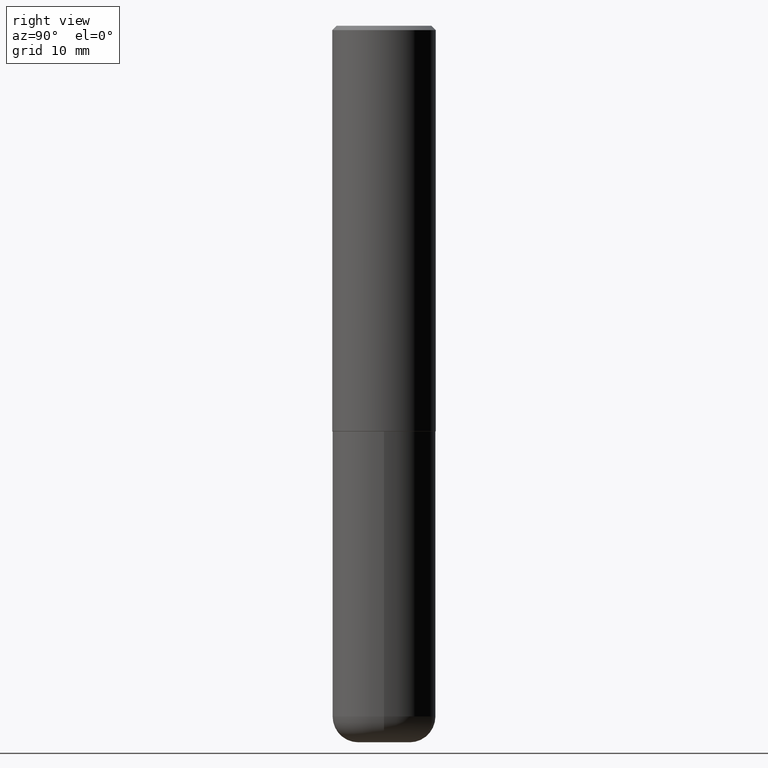
[diagram: clean part render]
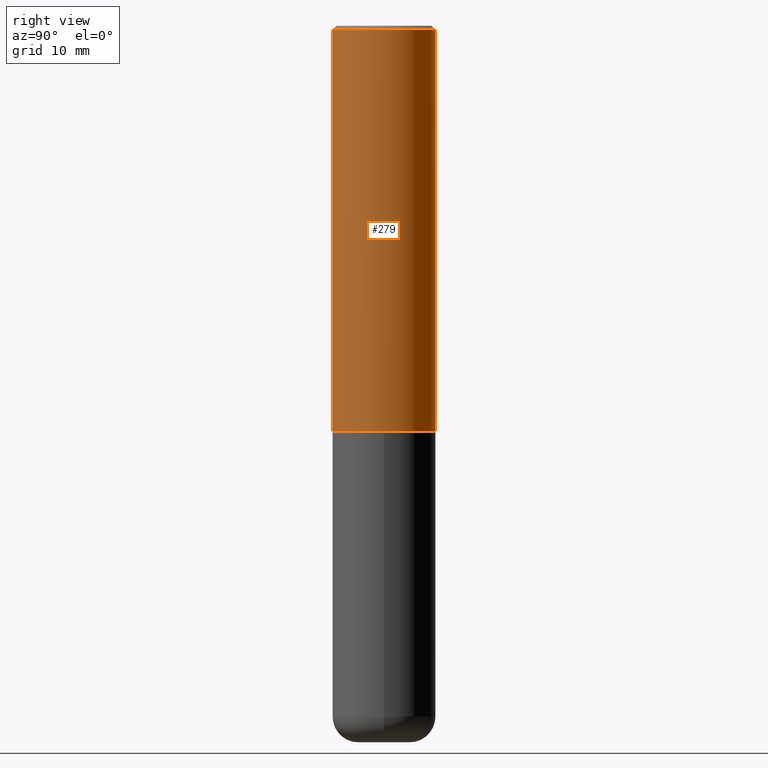
[diagram: same view with one face highlighted and labeled with its STEP entity id]
A machine part, right view. The second image highlights one B-rep face of the part: STEP entity #279.
In plain terms, the highlighted cylindrical surface (partial cylindrical patch) has radius 5.9995 mm, axis along (-0, 0, 1).
Its self-contained STEP definition (entity closure, byte-faithful):
#7 = DIRECTION ( 'NONE',  ( -2.445371925614294233E-29, 3.491620077334691546E-15, 1.000000000000000000 ) ) ;
#10 = EDGE_CURVE ( 'NONE', #61, #193, #118, .T. ) ;
#12 = DIRECTION ( 'NONE',  ( -2.445371925614294233E-29, 3.491620077334691546E-15, 1.000000000000000000 ) ) ;
#15 = DIRECTION ( 'NONE',  ( -2.445371925614294233E-29, 3.491620077334691546E-15, 1.000000000000000000 ) ) ;
#35 = DIRECTION ( 'NONE',  ( -6.982962677686265922E-15, -1.000000000000000000, 3.487819265831411744E-15 ) ) ;
#41 = CARTESIAN_POINT ( 'NONE',  ( 0.000000000000000000, 0.000000000000000000, 0.000000000000000000 ) ) ;
#61 = VERTEX_POINT ( 'NONE', #84 ) ;
#73 = CYLINDRICAL_SURFACE ( 'NONE', #303, 0.2362000000000001043 ) ;
#77 = DIRECTION ( 'NONE',  ( -2.445371925614294233E-29, 3.491620077334691546E-15, 1.000000000000000000 ) ) ;
#84 = CARTESIAN_POINT ( 'NONE',  ( -1.620449627073635079E-15, -0.2362000000000000766, -0.01999999999999922673 ) ) ;
#86 = LINE ( 'NONE', #206, #218 ) ;
#96 = EDGE_LOOP ( 'NONE', ( #355, #220, #316, #390 ) ) ;
#97 = CARTESIAN_POINT ( 'NONE',  ( 4.522470839231075964E-29, -6.457402171022779437E-15, -1.849400000000000155 ) ) ;
#116 = CARTESIAN_POINT ( 'NONE',  ( 1.678301941865357183E-15, 0.2362000000000001043, -8.247206622664545710E-16 ) ) ;
#118 = CIRCLE ( 'NONE', #225, 0.2361999999999999933 ) ;
#124 = VERTEX_POINT ( 'NONE', #192 ) ;
#141 = AXIS2_PLACEMENT_3D ( 'NONE', #97, #156, #180 ) ;
#148 = EDGE_CURVE ( 'NONE', #124, #418, #314, .T. ) ;
#156 = DIRECTION ( 'NONE',  ( -2.445371925614294233E-29, 3.491620077334691546E-15, 1.000000000000000000 ) ) ;
#180 = DIRECTION ( 'NONE',  ( -6.982962677686265133E-15, -1.000000000000000000, 3.469747663417773847E-15 ) ) ;
#192 = CARTESIAN_POINT ( 'NONE',  ( -1.649375784469452349E-15, -0.2362000000000066546, -1.849399999999999489 ) ) ;
#193 = VERTEX_POINT ( 'NONE', #325 ) ;
#205 = VECTOR ( 'NONE', #77, 39.37007874015748143 ) ;
#206 = CARTESIAN_POINT ( 'NONE',  ( -1.649375784469496722E-15, -0.2362000000000001043, 8.247206622664545710E-16 ) ) ;
#208 = CARTESIAN_POINT ( 'NONE',  ( 1.678301941865380454E-15, 0.2361999999999937760, -1.849400000000001043 ) ) ;
#218 = VECTOR ( 'NONE', #15, 39.37007874015748143 ) ;
#220 = ORIENTED_EDGE ( 'NONE', *, *, #363, .T. ) ;
#225 = AXIS2_PLACEMENT_3D ( 'NONE', #399, #7, #35 ) ;
#241 = LINE ( 'NONE', #116, #205 ) ;
#279 = ADVANCED_FACE ( 'NONE', ( #393 ), #73, .T. ) ;
#303 = AXIS2_PLACEMENT_3D ( 'NONE', #41, #12, #306 ) ;
#306 = DIRECTION ( 'NONE',  ( -6.982962677686265922E-15, -1.000000000000000000, 3.491620077334691941E-15 ) ) ;
#314 = CIRCLE ( 'NONE', #141, 0.2362000000000002153 ) ;
#316 = ORIENTED_EDGE ( 'NONE', *, *, #10, .F. ) ;
#325 = CARTESIAN_POINT ( 'NONE',  ( 1.649375784469496525E-15, 0.2361999999999999378, -0.02000000000000087472 ) ) ;
#355 = ORIENTED_EDGE ( 'NONE', *, *, #148, .T. ) ;
#357 = EDGE_CURVE ( 'NONE', #124, #61, #86, .T. ) ;
#363 = EDGE_CURVE ( 'NONE', #418, #193, #241, .T. ) ;
#390 = ORIENTED_EDGE ( 'NONE', *, *, #357, .F. ) ;
#393 = FACE_OUTER_BOUND ( 'NONE', #96, .T. ) ;
#399 = CARTESIAN_POINT ( 'NONE',  ( 4.890743851228601113E-31, -6.983240154669400497E-17, -0.02000000000000005246 ) ) ;
#418 = VERTEX_POINT ( 'NONE', #208 ) ;